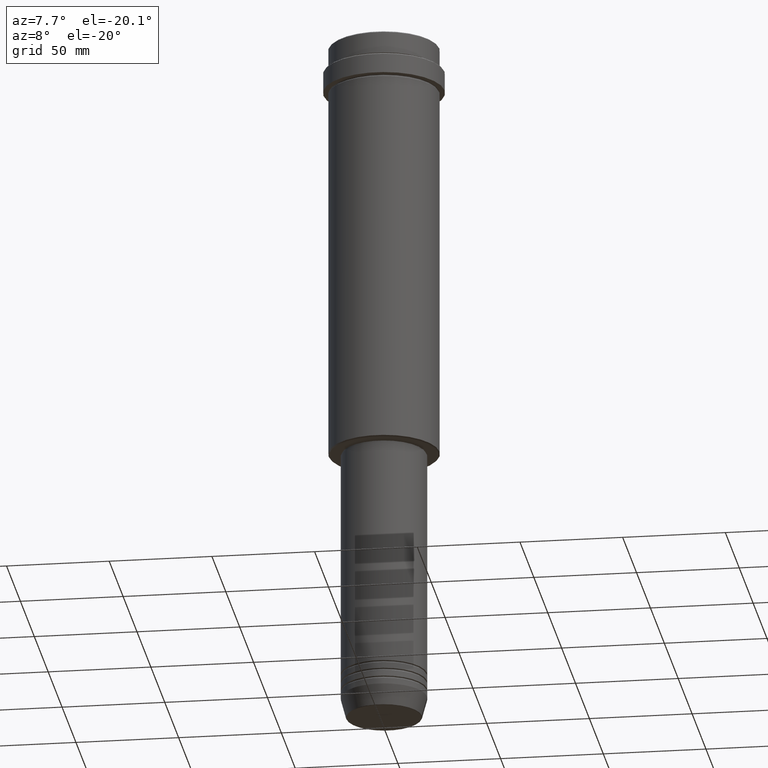
[diagram: clean part render]
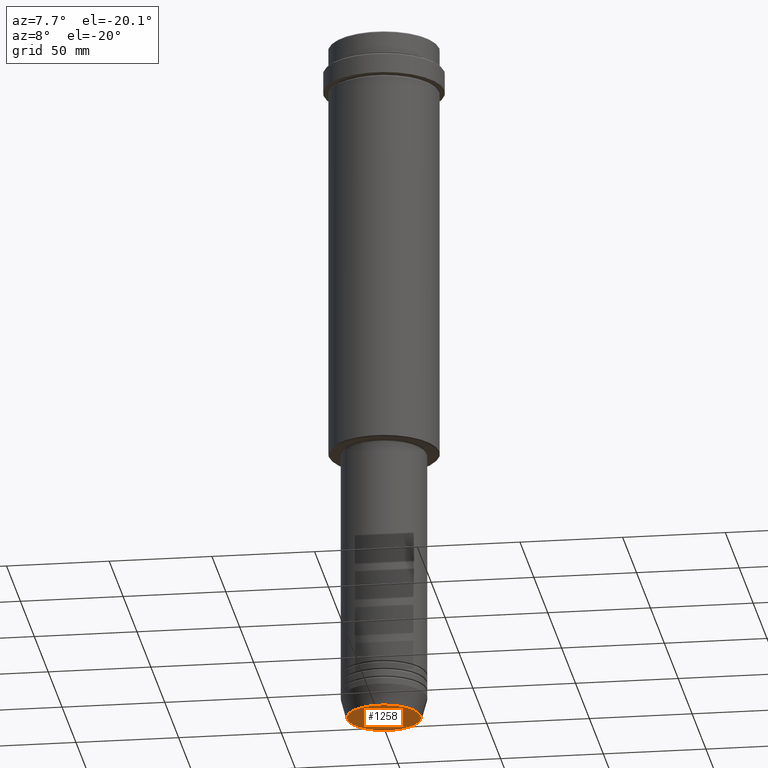
[diagram: same view with one face highlighted and labeled with its STEP entity id]
A machine part, auxiliary view. The second image highlights one B-rep face of the part: STEP entity #1258.
In plain terms, the highlighted planar face has unit normal (0, -0, 1).
Its self-contained STEP definition (entity closure, byte-faithful):
#39 = PLANE ( 'NONE',  #1019 ) ;
#48 = CARTESIAN_POINT ( 'NONE',  ( -17.93684458169929030, 2.226202879662625134E-15, -343.0000000000000000 ) ) ;
#73 = VERTEX_POINT ( 'NONE', #939 ) ;
#85 = DIRECTION ( 'NONE',  ( 1.000000000000000000, 0.000000000000000000, 0.000000000000000000 ) ) ;
#219 = AXIS2_PLACEMENT_3D ( 'NONE', #1163, #821, #85 ) ;
#245 = DIRECTION ( 'NONE',  ( 0.000000000000000000, -0.000000000000000000, 1.000000000000000000 ) ) ;
#263 = ORIENTED_EDGE ( 'NONE', *, *, #420, .T. ) ;
#335 = EDGE_LOOP ( 'NONE', ( #531, #263 ) ) ;
#420 = EDGE_CURVE ( 'NONE', #918, #73, #834, .T. ) ;
#478 = AXIS2_PLACEMENT_3D ( 'NONE', #1099, #636, #991 ) ;
#531 = ORIENTED_EDGE ( 'NONE', *, *, #622, .T. ) ;
#622 = EDGE_CURVE ( 'NONE', #73, #918, #793, .T. ) ;
#636 = DIRECTION ( 'NONE',  ( 0.000000000000000000, 0.000000000000000000, -1.000000000000000000 ) ) ;
#793 = CIRCLE ( 'NONE', #478, 17.93684458169929030 ) ;
#821 = DIRECTION ( 'NONE',  ( 0.000000000000000000, 0.000000000000000000, -1.000000000000000000 ) ) ;
#834 = CIRCLE ( 'NONE', #219, 17.93684458169929030 ) ;
#918 = VERTEX_POINT ( 'NONE', #48 ) ;
#939 = CARTESIAN_POINT ( 'NONE',  ( 17.93684458169929030, 0.000000000000000000, -343.0000000000000000 ) ) ;
#991 = DIRECTION ( 'NONE',  ( 1.000000000000000000, 0.000000000000000000, 0.000000000000000000 ) ) ;
#1010 = DIRECTION ( 'NONE',  ( 1.000000000000000000, 0.000000000000000000, 0.000000000000000000 ) ) ;
#1019 = AXIS2_PLACEMENT_3D ( 'NONE', #1041, #245, #1010 ) ;
#1041 = CARTESIAN_POINT ( 'NONE',  ( 0.000000000000000000, 0.000000000000000000, -343.0000000000000000 ) ) ;
#1099 = CARTESIAN_POINT ( 'NONE',  ( 0.000000000000000000, 0.000000000000000000, -343.0000000000000000 ) ) ;
#1117 = FACE_OUTER_BOUND ( 'NONE', #335, .T. ) ;
#1163 = CARTESIAN_POINT ( 'NONE',  ( 0.000000000000000000, 0.000000000000000000, -343.0000000000000000 ) ) ;
#1258 = ADVANCED_FACE ( 'NONE', ( #1117 ), #39, .F. ) ;